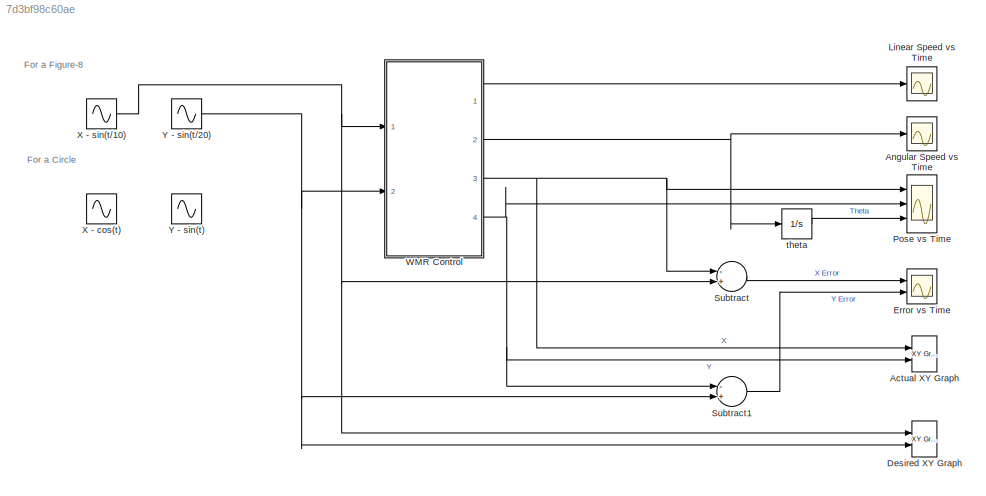
MODEL slx_7d3bf98c60ae
KIND model
CONFIG AbsTol = auto
CONFIG EnableMultiTasking = off
CONFIG FixedStep = auto
CONFIG MaxStep = auto
CONFIG MinStep = auto
CONFIG RelTol = 1e-3
CONFIG SampleTimeConstraint = Unconstrained
CONFIG Solver = VariableStepAuto
CONFIG SolverName = VariableStepAuto
CONFIG StartTime = 0.0
CONFIG StopTime = 200
BLOCK [Reference] Actual XY Graph  REF=simulink/Sinks/XY Graph
  Ports = [2]
  SourceBlock = simulink/Sinks/XY Graph
  SourceType = XY scope.
BLOCK [Scope] Angular Speed vs Time
  NumInputPorts = 1
  Ports = [1]
  ScopeSpecificationString = Simulink.scopes.TimeScopeBlockCfg('CurrentConfiguration', extmgr.ConfigurationSet(extmgr.Configuration('Core','General UI',true,'FigureColor',[1 1 1]),extmgr.Configuration('Core','Source UI',true),extmgr.Configuration('Sources','WiredSimulink',true,'DataLoggingVariableName','ScopeData3'),extmgr.Configuration('Visuals','Time Domain',true,'SerializedDisplays',{struct('MinYLimReal','-1.44809','MaxYLi...<+1597ch>
BLOCK [Reference] Desired XY Graph  REF=simulink/Sinks/XY Graph
  Ports = [2]
  SourceBlock = simulink/Sinks/XY Graph
  SourceType = XY scope.
BLOCK [Scope] Error vs Time
  NumInputPorts = 2
  Ports = [2]
  ScopeSpecificationString = Simulink.scopes.TimeScopeBlockCfg('CurrentConfiguration', extmgr.ConfigurationSet(extmgr.Configuration('Core','General UI',true,'FigureColor',[1 1 1]),extmgr.Configuration('Core','Source UI',true),extmgr.Configuration('Sources','WiredSimulink',true),extmgr.Configuration('Visuals','Time Domain',true,'SerializedDisplays',{struct('MinYLimReal','-2.40203','MaxYLimReal','2.39855','YLabelReal','','MinYL...<+1647ch>
BLOCK [Scope] Linear Speed vs Time
  NumInputPorts = 1
  Ports = [1]
  ScopeSpecificationString = Simulink.scopes.TimeScopeBlockCfg('CurrentConfiguration', extmgr.ConfigurationSet(extmgr.Configuration('Core','General UI',true,'FigureColor',[1 1 1]),extmgr.Configuration('Core','Source UI',true),extmgr.Configuration('Sources','WiredSimulink',true,'DataLoggingVariableName','ScopeData2'),extmgr.Configuration('Visuals','Time Domain',true,'SerializedDisplays',{struct('MinYLimReal','-0.05276','MaxYLi...<+1550ch>
BLOCK [Scope] Pose vs Time
  NumInputPorts = 3
  Ports = [3]
  ScopeSpecificationString = Simulink.scopes.TimeScopeBlockCfg('CurrentConfiguration', extmgr.ConfigurationSet(extmgr.Configuration('Core','General UI',true,'FigureColor',[1 1 1]),extmgr.Configuration('Core','Source UI',true),extmgr.Configuration('Sources','WiredSimulink',true,'DataLoggingVariableName','ScopeData1'),extmgr.Configuration('Visuals','Time Domain',true,'SerializedDisplays',{struct('MinYLimReal','-1.86244','MaxYLi...<+1827ch>
BLOCK [Sum] Subtract
  InputSameDT = off
  Inputs = -+
  OutDataTypeStr = Inherit: Inherit via internal rule
  Ports = [2, 1]
  SaturateOnIntegerOverflow = off
BLOCK [Sum] Subtract1
  InputSameDT = off
  Inputs = -+
  OutDataTypeStr = Inherit: Inherit via internal rule
  Ports = [2, 1]
  SaturateOnIntegerOverflow = off
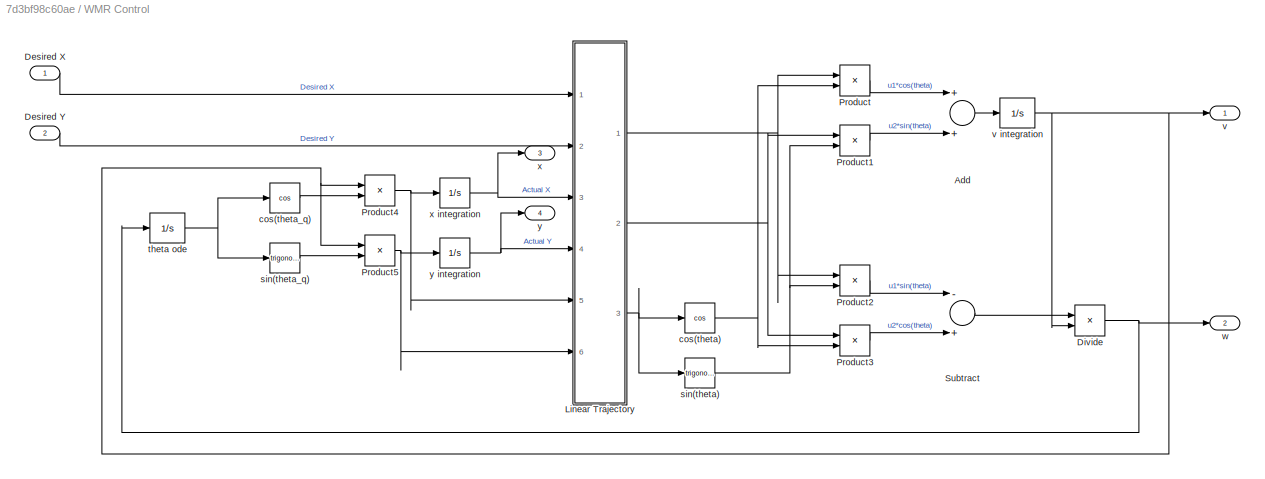
BLOCK [SubSystem] WMR Control
  Ports = [2, 4]
  RequestExecContextInheritance = off
  Variant = off
BLOCK [Sum] WMR Control/Add
  InputSameDT = off
  OutDataTypeStr = Inherit: Inherit via internal rule
  Ports = [2, 1]
  SaturateOnIntegerOverflow = off
BLOCK [Inport] WMR Control/Desired X
  IconDisplay = Port number
BLOCK [Inport] WMR Control/Desired Y
  IconDisplay = Port number
  Port = 2
BLOCK [Product] WMR Control/Divide
  InputSameDT = off
  Inputs = */
  OutDataTypeStr = Inherit: Inherit via internal rule
  Ports = [2, 1]
  RndMeth = Floor
  SaturateOnIntegerOverflow = off
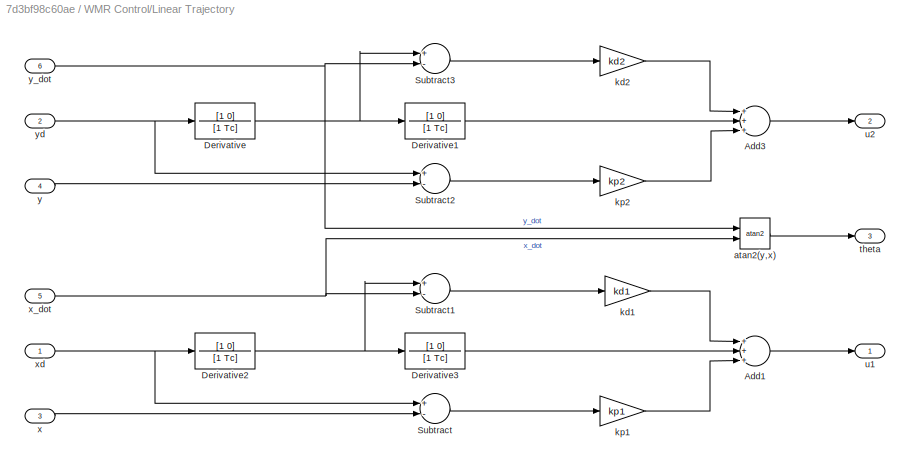
BLOCK [SubSystem] WMR Control/Linear Trajectory
  Ports = [6, 3]
  RequestExecContextInheritance = off
  Variant = off
BLOCK [Sum] WMR Control/Linear Trajectory/Add1
  InputSameDT = off
  Inputs = +++
  OutDataTypeStr = Inherit: Inherit via internal rule
  Ports = [3, 1]
  SaturateOnIntegerOverflow = off
BLOCK [Sum] WMR Control/Linear Trajectory/Add3
  InputSameDT = off
  Inputs = +++
  OutDataTypeStr = Inherit: Inherit via internal rule
  Ports = [3, 1]
  SaturateOnIntegerOverflow = off
BLOCK [TransferFcn] WMR Control/Linear Trajectory/Derivative
  Denominator = [1 Tc]
  Numerator = [1 0]
BLOCK [TransferFcn] WMR Control/Linear Trajectory/Derivative1
  Denominator = [1 Tc]
  Numerator = [1 0]
BLOCK [TransferFcn] WMR Control/Linear Trajectory/Derivative2
  Denominator = [1 Tc]
  Numerator = [1 0]
BLOCK [TransferFcn] WMR Control/Linear Trajectory/Derivative3
  Denominator = [1 Tc]
  Numerator = [1 0]
BLOCK [Sum] WMR Control/Linear Trajectory/Subtract
  InputSameDT = off
  Inputs = +-
  OutDataTypeStr = Inherit: Inherit via internal rule
  Ports = [2, 1]
  SaturateOnIntegerOverflow = off
BLOCK [Sum] WMR Control/Linear Trajectory/Subtract1
  InputSameDT = off
  Inputs = +-
  OutDataTypeStr = Inherit: Inherit via internal rule
  Ports = [2, 1]
  SaturateOnIntegerOverflow = off
BLOCK [Sum] WMR Control/Linear Trajectory/Subtract2
  InputSameDT = off
  Inputs = +-
  OutDataTypeStr = Inherit: Inherit via internal rule
  Ports = [2, 1]
  SaturateOnIntegerOverflow = off
BLOCK [Sum] WMR Control/Linear Trajectory/Subtract3
  InputSameDT = off
  Inputs = +-
  OutDataTypeStr = Inherit: Inherit via internal rule
  Ports = [2, 1]
  SaturateOnIntegerOverflow = off
BLOCK [Trigonometry] WMR Control/Linear Trajectory/atan2(y,x)
  Operator = atan2
  Ports = [2, 1]
BLOCK [Gain] WMR Control/Linear Trajectory/kd1
  Gain = kd1
  OutDataTypeStr = Inherit: Inherit via internal rule
  ParamDataTypeStr = Inherit: Inherit via internal rule
  SaturateOnIntegerOverflow = off
BLOCK [Gain] WMR Control/Linear Trajectory/kd2
  Gain = kd2
  OutDataTypeStr = Inherit: Inherit via internal rule
  ParamDataTypeStr = Inherit: Inherit via internal rule
  SaturateOnIntegerOverflow = off
BLOCK [Gain] WMR Control/Linear Trajectory/kp1
  Gain = kp1
  OutDataTypeStr = Inherit: Inherit via internal rule
  ParamDataTypeStr = Inherit: Inherit via internal rule
  SaturateOnIntegerOverflow = off
BLOCK [Gain] WMR Control/Linear Trajectory/kp2
  Gain = kp2
  OutDataTypeStr = Inherit: Inherit via internal rule
  ParamDataTypeStr = Inherit: Inherit via internal rule
  SaturateOnIntegerOverflow = off
BLOCK [Outport] WMR Control/Linear Trajectory/theta
  IconDisplay = Port number
  Port = 3
BLOCK [Outport] WMR Control/Linear Trajectory/u1
  IconDisplay = Port number
BLOCK [Outport] WMR Control/Linear Trajectory/u2
  IconDisplay = Port number
  Port = 2
BLOCK [Inport] WMR Control/Linear Trajectory/x
  IconDisplay = Port number
  Port = 3
BLOCK [Inport] WMR Control/Linear Trajectory/x_dot
  IconDisplay = Port number
  Port = 5
BLOCK [Inport] WMR Control/Linear Trajectory/xd
  IconDisplay = Port number
BLOCK [Inport] WMR Control/Linear Trajectory/y
  IconDisplay = Port number
  Port = 4
BLOCK [Inport] WMR Control/Linear Trajectory/y_dot
  IconDisplay = Port number
  Port = 6
BLOCK [Inport] WMR Control/Linear Trajectory/yd
  IconDisplay = Port number
  Port = 2
BLOCK [Product] WMR Control/Product
  InputSameDT = off
  OutDataTypeStr = Inherit: Inherit via internal rule
  Ports = [2, 1]
  RndMeth = Floor
  SaturateOnIntegerOverflow = off
BLOCK [Product] WMR Control/Product1
  InputSameDT = off
  OutDataTypeStr = Inherit: Inherit via internal rule
  Ports = [2, 1]
  RndMeth = Floor
  SaturateOnIntegerOverflow = off
BLOCK [Product] WMR Control/Product2
  InputSameDT = off
  OutDataTypeStr = Inherit: Inherit via internal rule
  Ports = [2, 1]
  RndMeth = Floor
  SaturateOnIntegerOverflow = off
BLOCK [Product] WMR Control/Product3
  InputSameDT = off
  OutDataTypeStr = Inherit: Inherit via internal rule
  Ports = [2, 1]
  RndMeth = Floor
  SaturateOnIntegerOverflow = off
BLOCK [Product] WMR Control/Product4
  InputSameDT = off
  OutDataTypeStr = Inherit: Inherit via internal rule
  Ports = [2, 1]
  RndMeth = Floor
  SaturateOnIntegerOverflow = off
BLOCK [Product] WMR Control/Product5
  InputSameDT = off
  OutDataTypeStr = Inherit: Inherit via internal rule
  Ports = [2, 1]
  RndMeth = Floor
  SaturateOnIntegerOverflow = off
BLOCK [Sum] WMR Control/Subtract
  InputSameDT = off
  Inputs = -+
  OutDataTypeStr = Inherit: Inherit via internal rule
  Ports = [2, 1]
  SaturateOnIntegerOverflow = off
BLOCK [Trigonometry] WMR Control/cos(theta)
  Operator = cos
  Ports = [1, 1]
BLOCK [Trigonometry] WMR Control/cos(theta_q)
  Operator = cos
  Ports = [1, 1]
BLOCK [Trigonometry] WMR Control/sin(theta)
  Ports = [1, 1]
BLOCK [Trigonometry] WMR Control/sin(theta_q)
  Ports = [1, 1]
BLOCK [Integrator] WMR Control/theta ode
  InitialCondition = thetai
  Ports = [1, 1]
BLOCK [Outport] WMR Control/v
  IconDisplay = Port number
BLOCK [Integrator] WMR Control/v integration
  InitialCondition = vi
  Ports = [1, 1]
BLOCK [Outport] WMR Control/w
  IconDisplay = Port number
  Port = 2
BLOCK [Outport] WMR Control/x
  IconDisplay = Port number
  Port = 3
BLOCK [Integrator] WMR Control/x integration
  InitialCondition = xi
  Ports = [1, 1]
BLOCK [Outport] WMR Control/y
  IconDisplay = Port number
  Port = 4
BLOCK [Integrator] WMR Control/y integration
  InitialCondition = yi
  Ports = [1, 1]
BLOCK [Sin] X - cos(t)
  Commented = on
  Phase = pi/2
  Ports = [0, 1]
  SampleTime = 0
BLOCK [Sin] X - sin(t//10)
  Frequency = 1/10
  Ports = [0, 1]
  SampleTime = 0
BLOCK [Sin] Y - sin(t)
  Commented = on
  Ports = [0, 1]
  SampleTime = 0
BLOCK [Sin] Y - sin(t//20)
  Frequency = 1/20
  Ports = [0, 1]
  SampleTime = 0
BLOCK [Integrator] theta
  Ports = [1, 1]
ANNOTATION (root): For a Circle
ANNOTATION (root): For a Figure-8
LINE Subtract1:1 -> Error vs Time:2
LINE Subtract:1 -> Error vs Time:1
LINE WMR Control/Add:1 -> WMR Control/v integration:1
LINE WMR Control/Desired X:1 -> WMR Control/Linear Trajectory:1
LINE WMR Control/Desired Y:1 -> WMR Control/Linear Trajectory:2
NET WMR Control/Divide:1 -> WMR Control/theta ode:1, WMR Control/w:1
LINE WMR Control/Linear Trajectory/Add1:1 -> WMR Control/Linear Trajectory/u1:1
LINE WMR Control/Linear Trajectory/Add3:1 -> WMR Control/Linear Trajectory/u2:1
LINE WMR Control/Linear Trajectory/Derivative1:1 -> WMR Control/Linear Trajectory/Add3:2
NET WMR Control/Linear Trajectory/Derivative2:1 -> WMR Control/Linear Trajectory/Derivative3:1, WMR Control/Linear Trajectory/Subtract1:1
LINE WMR Control/Linear Trajectory/Derivative3:1 -> WMR Control/Linear Trajectory/Add1:2
NET WMR Control/Linear Trajectory/Derivative:1 -> WMR Control/Linear Trajectory/Derivative1:1, WMR Control/Linear Trajectory/Subtract3:1
LINE WMR Control/Linear Trajectory/Subtract1:1 -> WMR Control/Linear Trajectory/kd1:1
LINE WMR Control/Linear Trajectory/Subtract2:1 -> WMR Control/Linear Trajectory/kp2:1
LINE WMR Control/Linear Trajectory/Subtract3:1 -> WMR Control/Linear Trajectory/kd2:1
LINE WMR Control/Linear Trajectory/Subtract:1 -> WMR Control/Linear Trajectory/kp1:1
LINE WMR Control/Linear Trajectory/atan2(y,x):1 -> WMR Control/Linear Trajectory/theta:1
LINE WMR Control/Linear Trajectory/kd1:1 -> WMR Control/Linear Trajectory/Add1:1
LINE WMR Control/Linear Trajectory/kd2:1 -> WMR Control/Linear Trajectory/Add3:1
LINE WMR Control/Linear Trajectory/kp1:1 -> WMR Control/Linear Trajectory/Add1:3
LINE WMR Control/Linear Trajectory/kp2:1 -> WMR Control/Linear Trajectory/Add3:3
LINE WMR Control/Linear Trajectory/x:1 -> WMR Control/Linear Trajectory/Subtract:2
NET WMR Control/Linear Trajectory/x_dot:1 -> WMR Control/Linear Trajectory/Subtract1:2, WMR Control/Linear Trajectory/atan2(y,x):2
NET WMR Control/Linear Trajectory/xd:1 -> WMR Control/Linear Trajectory/Derivative2:1, WMR Control/Linear Trajectory/Subtract:1
LINE WMR Control/Linear Trajectory/y:1 -> WMR Control/Linear Trajectory/Subtract2:2
NET WMR Control/Linear Trajectory/y_dot:1 -> WMR Control/Linear Trajectory/Subtract3:2, WMR Control/Linear Trajectory/atan2(y,x):1
NET WMR Control/Linear Trajectory/yd:1 -> WMR Control/Linear Trajectory/Derivative:1, WMR Control/Linear Trajectory/Subtract2:1
NET WMR Control/Linear Trajectory:1 -> WMR Control/Product2:1, WMR Control/Product:1
NET WMR Control/Linear Trajectory:2 -> WMR Control/Product1:1, WMR Control/Product3:1
NET WMR Control/Linear Trajectory:3 -> WMR Control/cos(theta):1, WMR Control/sin(theta):1
LINE WMR Control/Product1:1 -> WMR Control/Add:2
LINE WMR Control/Product2:1 -> WMR Control/Subtract:1
LINE WMR Control/Product3:1 -> WMR Control/Subtract:2
NET WMR Control/Product4:1 -> WMR Control/Linear Trajectory:5, WMR Control/x integration:1
NET WMR Control/Product5:1 -> WMR Control/Linear Trajectory:6, WMR Control/y integration:1
LINE WMR Control/Product:1 -> WMR Control/Add:1
LINE WMR Control/Subtract:1 -> WMR Control/Divide:1
NET WMR Control/cos(theta):1 -> WMR Control/Product3:2, WMR Control/Product:2
LINE WMR Control/cos(theta_q):1 -> WMR Control/Product4:2
NET WMR Control/sin(theta):1 -> WMR Control/Product1:2, WMR Control/Product2:2
LINE WMR Control/sin(theta_q):1 -> WMR Control/Product5:2
NET WMR Control/theta ode:1 -> WMR Control/cos(theta_q):1, WMR Control/sin(theta_q):1
NET WMR Control/v integration:1 -> WMR Control/Divide:2, WMR Control/Product4:1, WMR Control/Product5:1, WMR Control/v:1
NET WMR Control/x integration:1 -> WMR Control/Linear Trajectory:3, WMR Control/x:1
NET WMR Control/y integration:1 -> WMR Control/Linear Trajectory:4, WMR Control/y:1
LINE WMR Control:1 -> Linear Speed vs Time:1
NET WMR Control:2 -> Angular Speed vs Time:1, theta:1
NET WMR Control:3 -> Actual XY Graph:1, Pose vs Time:1, Subtract:1
NET WMR Control:4 -> Actual XY Graph:2, Pose vs Time:2, Subtract1:1
NET X - sin(t//10):1 -> Desired XY Graph:1, Subtract:2, WMR Control:1
NET Y - sin(t//20):1 -> Desired XY Graph:2, Subtract1:2, WMR Control:2
LINE theta:1 -> Pose vs Time:3
note: NET lines group one-source signal fan-out (src -> all destinations, sorted); 1:1 wires keep LINE
